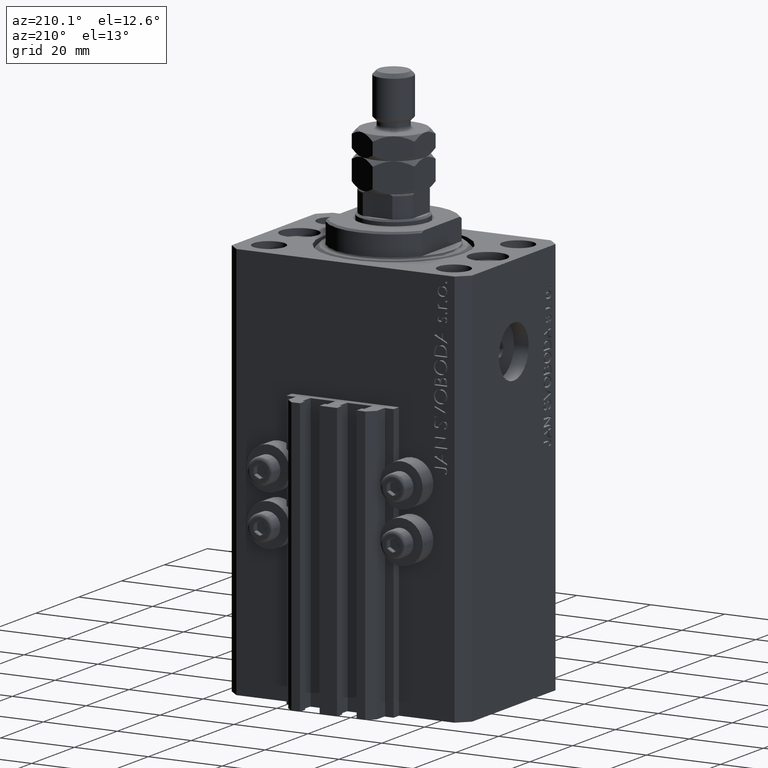
[diagram: clean part render]
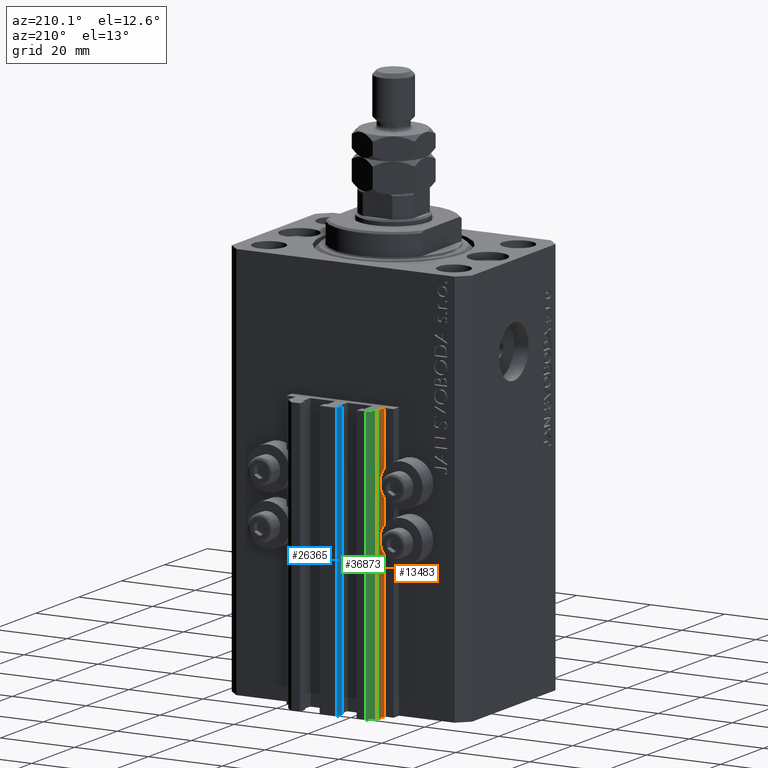
[diagram: same view with three faces highlighted in distinct colors, each labeled with its STEP entity id]
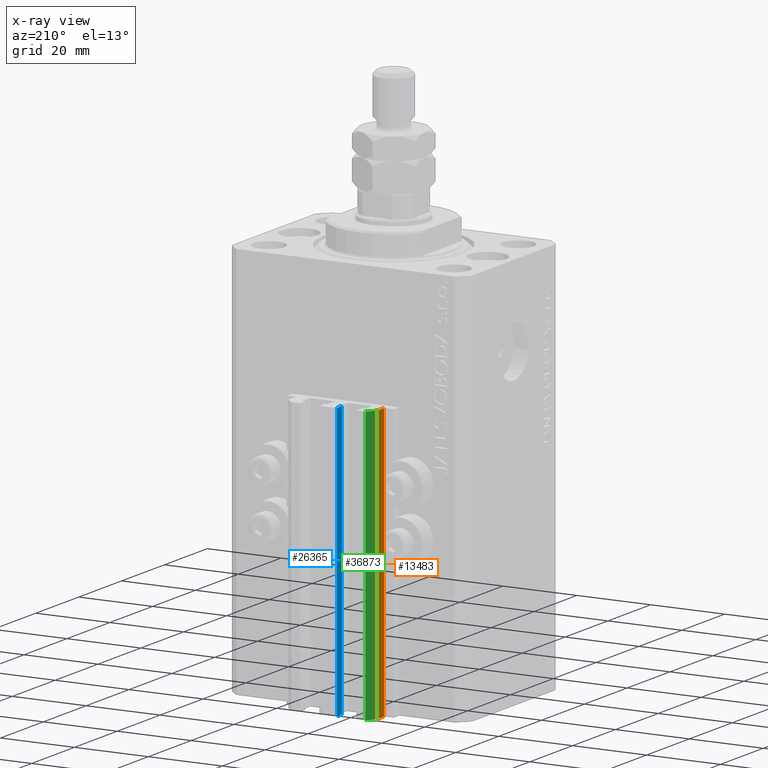
[diagram: x-ray of the same camera — body ghosted, the three highlighted faces saturated]
A machine part, auxiliary view with three faces highlighted in distinct colors.
The next image is the same camera in x-ray (body ghosted, the three faces saturated) — at least one of them is partly hidden behind the body in this view.
Their STEP definitions:

[orange] entity #13483 — the highlighted planar face has unit normal (-1, 0, 0).
#3774 = VERTEX_POINT ( 'NONE', #38699 ) ;
#4183 = CARTESIAN_POINT ( 'NONE',  ( -12.00000000000000000, 28.49999999999948841, -33.00000000000000000 ) ) ;
#5131 = ORIENTED_EDGE ( 'NONE', *, *, #10989, .T. ) ;
#5222 = ORIENTED_EDGE ( 'NONE', *, *, #34108, .T. ) ;
#7590 = CARTESIAN_POINT ( 'NONE',  ( -12.00000000000000000, 28.49999999999948841, -107.0000000000000000 ) ) ;
#7839 = DIRECTION ( 'NONE',  ( -1.000000000000000000, 0.000000000000000000, 0.000000000000000000 ) ) ;
#8551 = VECTOR ( 'NONE', #47368, 1000.000000000000000 ) ;
#8665 = LINE ( 'NONE', #9146, #8551 ) ;
#9146 = CARTESIAN_POINT ( 'NONE',  ( -12.00000000000000000, 28.49999999999948841, -107.0000000000000000 ) ) ;
#9785 = VERTEX_POINT ( 'NONE', #23985 ) ;
#10989 = EDGE_CURVE ( 'NONE', #17524, #3774, #27144, .T. ) ;
#11679 = VECTOR ( 'NONE', #17001, 1000.000000000000000 ) ;
#12058 = DIRECTION ( 'NONE',  ( 0.000000000000000000, -1.000000000000000000, 0.000000000000000000 ) ) ;
#12317 = EDGE_CURVE ( 'NONE', #35444, #9785, #8665, .T. ) ;
#13483 = ADVANCED_FACE ( 'NONE', ( #26823 ), #26107, .T. ) ;
#15157 = EDGE_LOOP ( 'NONE', ( #45329, #18031, #5222, #5131 ) ) ;
#17001 = DIRECTION ( 'NONE',  ( 0.000000000000000000, 0.000000000000000000, 1.000000000000000000 ) ) ;
#17524 = VERTEX_POINT ( 'NONE', #22313 ) ;
#18031 = ORIENTED_EDGE ( 'NONE', *, *, #12317, .F. ) ;
#18973 = LINE ( 'NONE', #38451, #44566 ) ;
#22313 = CARTESIAN_POINT ( 'NONE',  ( -12.00000000000000000, 25.19999999999949125, -107.0000000000000000 ) ) ;
#22883 = DIRECTION ( 'NONE',  ( 0.000000000000000000, 0.000000000000000000, 1.000000000000000000 ) ) ;
#23985 = CARTESIAN_POINT ( 'NONE',  ( -12.00000000000000000, 28.49999999999948841, -33.00000000000000000 ) ) ;
#26107 = PLANE ( 'NONE',  #29079 ) ;
#26823 = FACE_OUTER_BOUND ( 'NONE', #15157, .T. ) ;
#27144 = LINE ( 'NONE', #46861, #11679 ) ;
#29079 = AXIS2_PLACEMENT_3D ( 'NONE', #7590, #7839, #22883 ) ;
#34027 = LINE ( 'NONE', #4183, #35811 ) ;
#34108 = EDGE_CURVE ( 'NONE', #35444, #17524, #18973, .T. ) ;
#34978 = EDGE_CURVE ( 'NONE', #9785, #3774, #34027, .T. ) ;
#35004 = CARTESIAN_POINT ( 'NONE',  ( -12.00000000000000000, 28.49999999999948841, -107.0000000000000000 ) ) ;
#35444 = VERTEX_POINT ( 'NONE', #35004 ) ;
#35811 = VECTOR ( 'NONE', #42403, 1000.000000000000000 ) ;
#38451 = CARTESIAN_POINT ( 'NONE',  ( -12.00000000000000000, 28.49999999999948841, -107.0000000000000000 ) ) ;
#38699 = CARTESIAN_POINT ( 'NONE',  ( -12.00000000000000000, 25.19999999999949125, -33.00000000000000000 ) ) ;
#42403 = DIRECTION ( 'NONE',  ( 0.000000000000000000, -1.000000000000000000, 0.000000000000000000 ) ) ;
#44566 = VECTOR ( 'NONE', #12058, 1000.000000000000000 ) ;
#45329 = ORIENTED_EDGE ( 'NONE', *, *, #34978, .F. ) ;
#46861 = CARTESIAN_POINT ( 'NONE',  ( -12.00000000000000000, 25.19999999999949125, -107.0000000000000000 ) ) ;
#47368 = DIRECTION ( 'NONE',  ( 0.000000000000000000, 0.000000000000000000, 1.000000000000000000 ) ) ;

[blue] entity #26365 — the highlighted planar face has unit normal (-1, 0, 0).
#1106 = DIRECTION ( 'NONE',  ( 0.000000000000000000, -1.000000000000000000, 0.000000000000000000 ) ) ;
#2493 = DIRECTION ( 'NONE',  ( 0.000000000000000000, -1.000000000000000000, 0.000000000000000000 ) ) ;
#2933 = CARTESIAN_POINT ( 'NONE',  ( -2.350000000000003197, 30.49999999999949907, -33.00000000000000000 ) ) ;
#4616 = ORIENTED_EDGE ( 'NONE', *, *, #39535, .F. ) ;
#5301 = DIRECTION ( 'NONE',  ( 0.000000000000000000, 0.000000000000000000, 1.000000000000000000 ) ) ;
#6187 = LINE ( 'NONE', #21227, #11468 ) ;
#6226 = CARTESIAN_POINT ( 'NONE',  ( -2.350000000000003197, 30.49999999999949907, -107.0000000000000000 ) ) ;
#11468 = VECTOR ( 'NONE', #2493, 1000.000000000000000 ) ;
#14948 = DIRECTION ( 'NONE',  ( 0.000000000000000000, 0.000000000000000000, 1.000000000000000000 ) ) ;
#15225 = AXIS2_PLACEMENT_3D ( 'NONE', #40934, #48337, #29838 ) ;
#15249 = EDGE_LOOP ( 'NONE', ( #18512, #4616, #40350, #42611 ) ) ;
#15678 = LINE ( 'NONE', #30727, #37553 ) ;
#18512 = ORIENTED_EDGE ( 'NONE', *, *, #31988, .F. ) ;
#21227 = CARTESIAN_POINT ( 'NONE',  ( -2.350000000000003197, 30.49999999999949907, -33.00000000000000000 ) ) ;
#22519 = VECTOR ( 'NONE', #5301, 1000.000000000000000 ) ;
#23639 = CARTESIAN_POINT ( 'NONE',  ( -2.350000000000003197, 28.09999999999950049, -33.00000000000000000 ) ) ;
#26365 = ADVANCED_FACE ( 'NONE', ( #44390 ), #41657, .T. ) ;
#27762 = CARTESIAN_POINT ( 'NONE',  ( -2.350000000000003197, 28.09999999999950049, -107.0000000000000000 ) ) ;
#29687 = VERTEX_POINT ( 'NONE', #2933 ) ;
#29838 = DIRECTION ( 'NONE',  ( 0.000000000000000000, 0.000000000000000000, 1.000000000000000000 ) ) ;
#30727 = CARTESIAN_POINT ( 'NONE',  ( -2.350000000000003197, 30.49999999999949907, -107.0000000000000000 ) ) ;
#31988 = EDGE_CURVE ( 'NONE', #29687, #45277, #6187, .T. ) ;
#32833 = VERTEX_POINT ( 'NONE', #6226 ) ;
#34894 = CARTESIAN_POINT ( 'NONE',  ( -2.350000000000003197, 30.49999999999949907, -107.0000000000000000 ) ) ;
#36102 = EDGE_CURVE ( 'NONE', #32833, #47847, #38604, .T. ) ;
#36884 = EDGE_CURVE ( 'NONE', #47847, #45277, #46502, .T. ) ;
#37553 = VECTOR ( 'NONE', #14948, 1000.000000000000000 ) ;
#38604 = LINE ( 'NONE', #34894, #45333 ) ;
#39535 = EDGE_CURVE ( 'NONE', #32833, #29687, #15678, .T. ) ;
#40350 = ORIENTED_EDGE ( 'NONE', *, *, #36102, .T. ) ;
#40934 = CARTESIAN_POINT ( 'NONE',  ( -2.350000000000003197, 30.49999999999949907, -107.0000000000000000 ) ) ;
#41657 = PLANE ( 'NONE',  #15225 ) ;
#42611 = ORIENTED_EDGE ( 'NONE', *, *, #36884, .T. ) ;
#44390 = FACE_OUTER_BOUND ( 'NONE', #15249, .T. ) ;
#44405 = CARTESIAN_POINT ( 'NONE',  ( -2.350000000000003197, 28.09999999999950049, -107.0000000000000000 ) ) ;
#45277 = VERTEX_POINT ( 'NONE', #23639 ) ;
#45333 = VECTOR ( 'NONE', #1106, 1000.000000000000000 ) ;
#46502 = LINE ( 'NONE', #27762, #22519 ) ;
#47847 = VERTEX_POINT ( 'NONE', #44405 ) ;
#48337 = DIRECTION ( 'NONE',  ( -1.000000000000000000, 0.000000000000000000, 0.000000000000000000 ) ) ;

[green] entity #36873 — the highlighted planar face has unit normal (-0.7071, 0.7071, 0).
#154 = EDGE_CURVE ( 'NONE', #43462, #20027, #35034, .T. ) ;
#6626 = DIRECTION ( 'NONE',  ( -0.7071067811865472397, -0.7071067811865479058, 0.000000000000000000 ) ) ;
#6705 = CARTESIAN_POINT ( 'NONE',  ( -10.00000000000000000, 30.49999999999948841, -33.00000000000000000 ) ) ;
#8551 = VECTOR ( 'NONE', #47368, 1000.000000000000000 ) ;
#8665 = LINE ( 'NONE', #9146, #8551 ) ;
#9146 = CARTESIAN_POINT ( 'NONE',  ( -12.00000000000000000, 28.49999999999948841, -107.0000000000000000 ) ) ;
#9251 = DIRECTION ( 'NONE',  ( -0.7071067811865479058, 0.7071067811865472397, 0.000000000000000000 ) ) ;
#9785 = VERTEX_POINT ( 'NONE', #23985 ) ;
#11389 = DIRECTION ( 'NONE',  ( 0.000000000000000000, 0.000000000000000000, 1.000000000000000000 ) ) ;
#12317 = EDGE_CURVE ( 'NONE', #35444, #9785, #8665, .T. ) ;
#13599 = DIRECTION ( 'NONE',  ( -0.7071067811865472397, -0.7071067811865479058, 0.000000000000000000 ) ) ;
#14024 = LINE ( 'NONE', #29086, #38461 ) ;
#16153 = VECTOR ( 'NONE', #11389, 1000.000000000000000 ) ;
#16207 = AXIS2_PLACEMENT_3D ( 'NONE', #31934, #9251, #23817 ) ;
#16636 = FACE_OUTER_BOUND ( 'NONE', #27678, .T. ) ;
#20027 = VERTEX_POINT ( 'NONE', #27861 ) ;
#22900 = ORIENTED_EDGE ( 'NONE', *, *, #12317, .T. ) ;
#23817 = DIRECTION ( 'NONE',  ( -0.7071067811865472397, -0.7071067811865479058, 0.000000000000000000 ) ) ;
#23985 = CARTESIAN_POINT ( 'NONE',  ( -12.00000000000000000, 28.49999999999948841, -33.00000000000000000 ) ) ;
#27517 = PLANE ( 'NONE',  #16207 ) ;
#27678 = EDGE_LOOP ( 'NONE', ( #30648, #44687, #42223, #22900 ) ) ;
#27861 = CARTESIAN_POINT ( 'NONE',  ( -10.00000000000000000, 30.49999999999948841, -33.00000000000000000 ) ) ;
#28659 = LINE ( 'NONE', #6705, #43239 ) ;
#29086 = CARTESIAN_POINT ( 'NONE',  ( -10.00000000000000000, 30.49999999999948841, -107.0000000000000000 ) ) ;
#30648 = ORIENTED_EDGE ( 'NONE', *, *, #44902, .F. ) ;
#31934 = CARTESIAN_POINT ( 'NONE',  ( -10.00000000000000000, 30.49999999999948841, -107.0000000000000000 ) ) ;
#35004 = CARTESIAN_POINT ( 'NONE',  ( -12.00000000000000000, 28.49999999999948841, -107.0000000000000000 ) ) ;
#35034 = LINE ( 'NONE', #45176, #16153 ) ;
#35444 = VERTEX_POINT ( 'NONE', #35004 ) ;
#36873 = ADVANCED_FACE ( 'NONE', ( #16636 ), #27517, .T. ) ;
#38461 = VECTOR ( 'NONE', #6626, 999.9999999999998863 ) ;
#41319 = CARTESIAN_POINT ( 'NONE',  ( -10.00000000000000000, 30.49999999999948841, -107.0000000000000000 ) ) ;
#42223 = ORIENTED_EDGE ( 'NONE', *, *, #44282, .T. ) ;
#43239 = VECTOR ( 'NONE', #13599, 999.9999999999998863 ) ;
#43462 = VERTEX_POINT ( 'NONE', #41319 ) ;
#44282 = EDGE_CURVE ( 'NONE', #43462, #35444, #14024, .T. ) ;
#44687 = ORIENTED_EDGE ( 'NONE', *, *, #154, .F. ) ;
#44902 = EDGE_CURVE ( 'NONE', #20027, #9785, #28659, .T. ) ;
#45176 = CARTESIAN_POINT ( 'NONE',  ( -10.00000000000000000, 30.49999999999948841, -107.0000000000000000 ) ) ;
#47368 = DIRECTION ( 'NONE',  ( 0.000000000000000000, 0.000000000000000000, 1.000000000000000000 ) ) ;